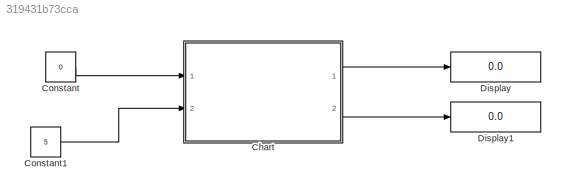
MODEL slx_319431b73cca
KIND model
CONFIG AbsTol = auto
CONFIG EnableMultiTasking = off
CONFIG FixedStep = auto
CONFIG MaxStep = auto
CONFIG MinStep = auto
CONFIG RelTol = 1e-3
CONFIG SampleTimeConstraint = Unconstrained
CONFIG SolverName = VariableStepAuto
CONFIG StartTime = 0.0
CONFIG StopTime = 100.0
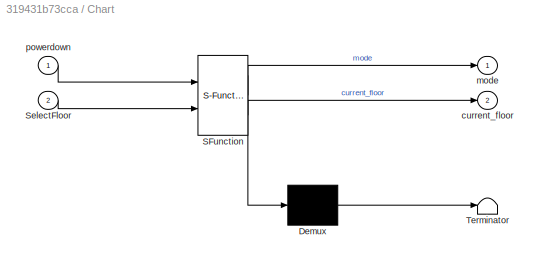
BLOCK [SubSystem] Chart
  ErrorFcn = Stateflow.Translate.translate
  PermitHierarchicalResolution = ExplicitOnly
  Ports = [2, 2]
  RequestExecContextInheritance = off
  SFBlockType = Chart
  TreatAsAtomicUnit = on
BLOCK [Demux] Chart/ Demux 
  Outputs = 1
  Ports = [1, 1]
BLOCK [S-Function] Chart/ SFunction 
  EnableBusSupport = on
  FunctionName = sf_sfun
  PortCounts = [2 3]
  Ports = [2, 3]
  SFcnIsStateOwnerBlock = off
  SFunctionDeploymentMode = off
  Tag = Stateflow S-Function 3
BLOCK [Terminator] Chart/ Terminator 
BLOCK [Inport] Chart/SelectFloor
  Port = 2
BLOCK [Outport] Chart/current_floor
  Port = 2
BLOCK [Outport] Chart/mode
BLOCK [Inport] Chart/powerdown
BLOCK [Constant] Constant
  Value = 0
BLOCK [Constant] Constant1
  Value = 5
BLOCK [Display] Display
  Decimation = 1
  Ports = [1]
BLOCK [Display] Display1
  Decimation = 1
  Ports = [1]
LINE Chart:1 -> Display:1
LINE Chart:2 -> Display1:1
LINE Constant1:1 -> Chart:2
LINE Constant:1 -> Chart:1
CHART Chart states=10 transitions=23
  STATE_LABEL 'LiftOperation\nentry:\nmode=0;'
  STATE_LABEL 'LiftPowerOn'
  STATE_LABEL 'Floor5\nentry:\nmode=1;\nduring:\ncurrent_floor=5;\npresentFloor(current_floor);\nexit:\nmode=0;\nafter(1,sec);\n'
  STATE_LABEL 'Floor4\nentry:\nmode=1;\nduring:\ncurrent_floor=4;\npresentFloor(current_floor);\nexit:\nmode=0;\nafter(1,sec);\n'
  STATE_LABEL 'Floor3\nentry:\nmode=1;\nduring:\ncurrent_floor=3;\npresentFloor(current_floor);\nexit:\nmode=0;\nafter(1,sec);'
  STATE_LABEL 'Floor2\nentry:\nmode=1;\nduring:\ncurrent_floor=2;\npresentFloor(current_floor);\nexit:\nmode=0;\nafter(1,sec);'
  STATE_LABEL 'Floor1\nentry:\nmode=1;\nduring:\ncurrent_floor=1;\npresentFloor(current_floor);\nexit:\nmode=0;\nafter(1,sec);'
  STATE_LABEL 'Floor0\nentry:\nmode=1;\nduring:\ncurrent_floor=0;\npresentFloor(current_floor);\nexit:\nmode=0;\nafter(1,sec);'
  STATE_LABEL 'descend'
  STATE_LABEL 'ascend'
  STATE_LABEL 'descend'
  STATE_LABEL 'ascend'
  STATE_LABEL 'descend'
  STATE_LABEL 'ascend'
  STATE_LABEL 'descend'
  STATE_LABEL 'ascend'
  STATE_LABEL 'descend'
  STATE_LABEL 'ascend'
  STATE_LABEL 'LiftPowerOff\nentry:\nmode=0;'
  STATE_LABEL '[powerdown==1]'
  STATE_LABEL '[powerdown==0]'
  STATE_LABEL 'LiftPowerOn'
  STATE_LABEL 'Floor5\nentry:\nmode=1;\nduring:\ncurrent_floor=5;\npresentFloor(current_floor);\nexit:\nmode=0;\nafter(1,sec);\n'
  STATE_LABEL 'Floor4\nentry:\nmode=1;\nduring:\ncurrent_floor=4;\npresentFloor(current_floor);\nexit:\nmode=0;\nafter(1,sec);\n'
  STATE_LABEL 'Floor3\nentry:\nmode=1;\nduring:\ncurrent_floor=3;\npresentFloor(current_floor);\nexit:\nmode=0;\nafter(1,sec);'
  STATE_LABEL 'Floor2\nentry:\nmode=1;\nduring:\ncurrent_floor=2;\npresentFloor(current_floor);\nexit:\nmode=0;\nafter(1,sec);'
  STATE_LABEL 'Floor1\nentry:\nmode=1;\nduring:\ncurrent_floor=1;\npresentFloor(current_floor);\nexit:\nmode=0;\nafter(1,sec);'
  STATE_LABEL 'Floor0\nentry:\nmode=1;\nduring:\ncurrent_floor=0;\npresentFloor(current_floor);\nexit:\nmode=0;\nafter(1,sec);'
  STATE_LABEL 'descend'
  STATE_LABEL 'ascend'
  STATE_LABEL 'descend'
  STATE_LABEL 'ascend'
  STATE_LABEL 'descend'
  STATE_LABEL 'ascend'
  STATE_LABEL 'descend'
  STATE_LABEL 'ascend'
  STATE_LABEL 'descend'
  STATE_LABEL 'ascend'
  STATE_LABEL 'Floor5\nentry:\nmode=1;\nduring:\ncurrent_floor=5;\npresentFloor(current_floor);\nexit:\nmode=0;\nafter(1,sec);\n'
  STATE_LABEL 'Floor4\nentry:\nmode=1;\nduring:\ncurrent_floor=4;\npresentFloor(current_floor);\nexit:\nmode=0;\nafter(1,sec);\n'
CHART  states=0 transitions=0
